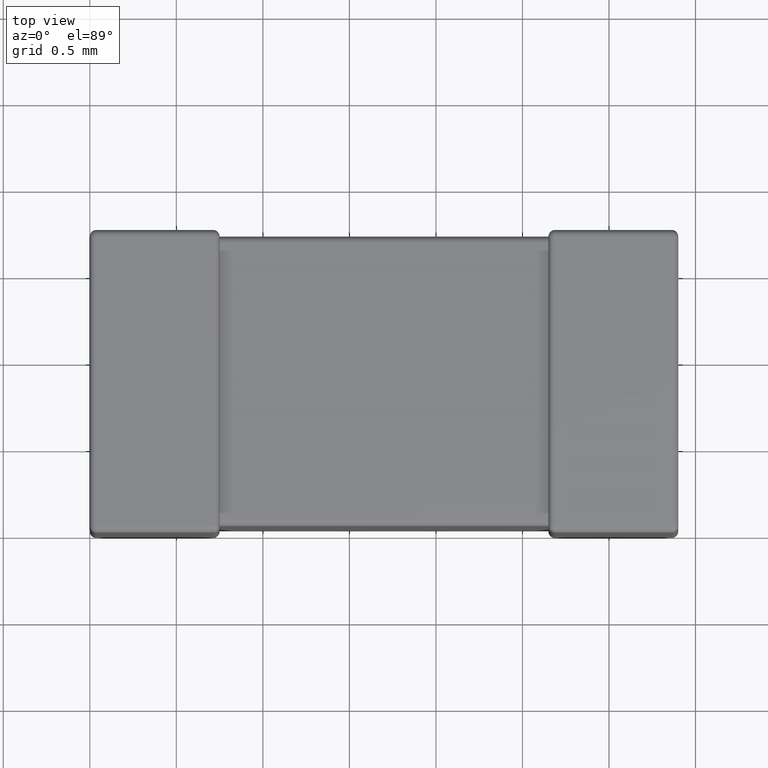
[diagram: clean part render]
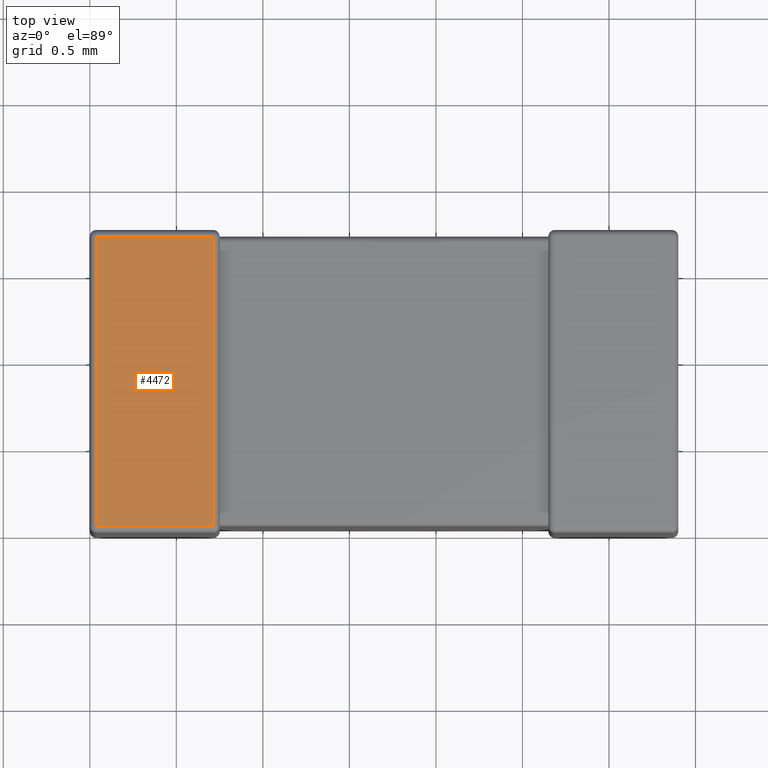
[diagram: same view with one face highlighted and labeled with its STEP entity id]
A machine part, top view. The second image highlights one B-rep face of the part: STEP entity #4472.
In plain terms, the highlighted planar face has unit normal (0, 0, -1).
Its self-contained STEP definition (entity closure, byte-faithful):
#120 = VECTOR ( 'NONE', #2832, 1000.000000000000000 ) ;
#198 = DIRECTION ( 'NONE',  ( -1.000000000000000000, 0.0000000000000000000, -0.0000000000000000000 ) ) ;
#523 = CARTESIAN_POINT ( 'NONE',  ( 3.400000000000000400, 0.03744000000000000100, 0.0000000000000000000 ) ) ;
#863 = VECTOR ( 'NONE', #1401, 1000.000000000000000 ) ;
#899 = EDGE_CURVE ( 'NONE', #1868, #1422, #1988, .T. ) ;
#1105 = ORIENTED_EDGE ( 'NONE', *, *, #1892, .T. ) ;
#1120 = EDGE_CURVE ( 'NONE', #4569, #3846, #2558, .T. ) ;
#1401 = DIRECTION ( 'NONE',  ( 1.000000000000000000, -0.0000000000000000000, -0.0000000000000000000 ) ) ;
#1422 = VERTEX_POINT ( 'NONE', #3484 ) ;
#1675 = CARTESIAN_POINT ( 'NONE',  ( 0.03744000000000012600, 1.712560000000000100, 0.0000000000000000000 ) ) ;
#1863 = FACE_OUTER_BOUND ( 'NONE', #1905, .T. ) ;
#1868 = VERTEX_POINT ( 'NONE', #1904 ) ;
#1892 = EDGE_CURVE ( 'NONE', #3846, #1868, #4423, .T. ) ;
#1904 = CARTESIAN_POINT ( 'NONE',  ( 0.7125600000000047500, 0.03744000000000000100, 0.0000000000000000000 ) ) ;
#1905 = EDGE_LOOP ( 'NONE', ( #1105, #3271, #3878, #3547 ) ) ;
#1908 = CARTESIAN_POINT ( 'NONE',  ( 0.03744000000000012600, 0.03744000000000000100, 0.0000000000000000000 ) ) ;
#1943 = CARTESIAN_POINT ( 'NONE',  ( 3.400000000000000400, 1.712560000000000100, 0.0000000000000000000 ) ) ;
#1988 = LINE ( 'NONE', #2111, #2609 ) ;
#2111 = CARTESIAN_POINT ( 'NONE',  ( 0.7125600000000048600, -7.782393927415719200E-015, 0.0000000000000000000 ) ) ;
#2331 = EDGE_CURVE ( 'NONE', #1422, #4569, #3398, .T. ) ;
#2411 = DIRECTION ( 'NONE',  ( 0.0000000000000000000, 0.0000000000000000000, -1.000000000000000000 ) ) ;
#2462 = VECTOR ( 'NONE', #3345, 1000.000000000000000 ) ;
#2463 = CARTESIAN_POINT ( 'NONE',  ( 0.03744000000000012600, 0.0000000000000000000, 0.0000000000000000000 ) ) ;
#2558 = LINE ( 'NONE', #2463, #120 ) ;
#2609 = VECTOR ( 'NONE', #4647, 1000.000000000000000 ) ;
#2832 = DIRECTION ( 'NONE',  ( 0.0000000000000000000, -1.000000000000000000, 0.0000000000000000000 ) ) ;
#2955 = AXIS2_PLACEMENT_3D ( 'NONE', #3431, #2411, #198 ) ;
#3271 = ORIENTED_EDGE ( 'NONE', *, *, #899, .T. ) ;
#3345 = DIRECTION ( 'NONE',  ( -1.000000000000000000, 0.0000000000000000000, 0.0000000000000000000 ) ) ;
#3398 = LINE ( 'NONE', #1943, #2462 ) ;
#3431 = CARTESIAN_POINT ( 'NONE',  ( 3.400000000000000400, 0.0000000000000000000, 0.0000000000000000000 ) ) ;
#3484 = CARTESIAN_POINT ( 'NONE',  ( 0.7125599999999998600, 1.712560000000000100, 0.0000000000000000000 ) ) ;
#3547 = ORIENTED_EDGE ( 'NONE', *, *, #1120, .T. ) ;
#3801 = PLANE ( 'NONE',  #2955 ) ;
#3846 = VERTEX_POINT ( 'NONE', #1908 ) ;
#3878 = ORIENTED_EDGE ( 'NONE', *, *, #2331, .T. ) ;
#4423 = LINE ( 'NONE', #523, #863 ) ;
#4472 = ADVANCED_FACE ( 'NONE', ( #1863 ), #3801, .F. ) ;
#4569 = VERTEX_POINT ( 'NONE', #1675 ) ;
#4647 = DIRECTION ( 'NONE',  ( -2.895839135912144400E-015, 1.000000000000000000, -0.0000000000000000000 ) ) ;